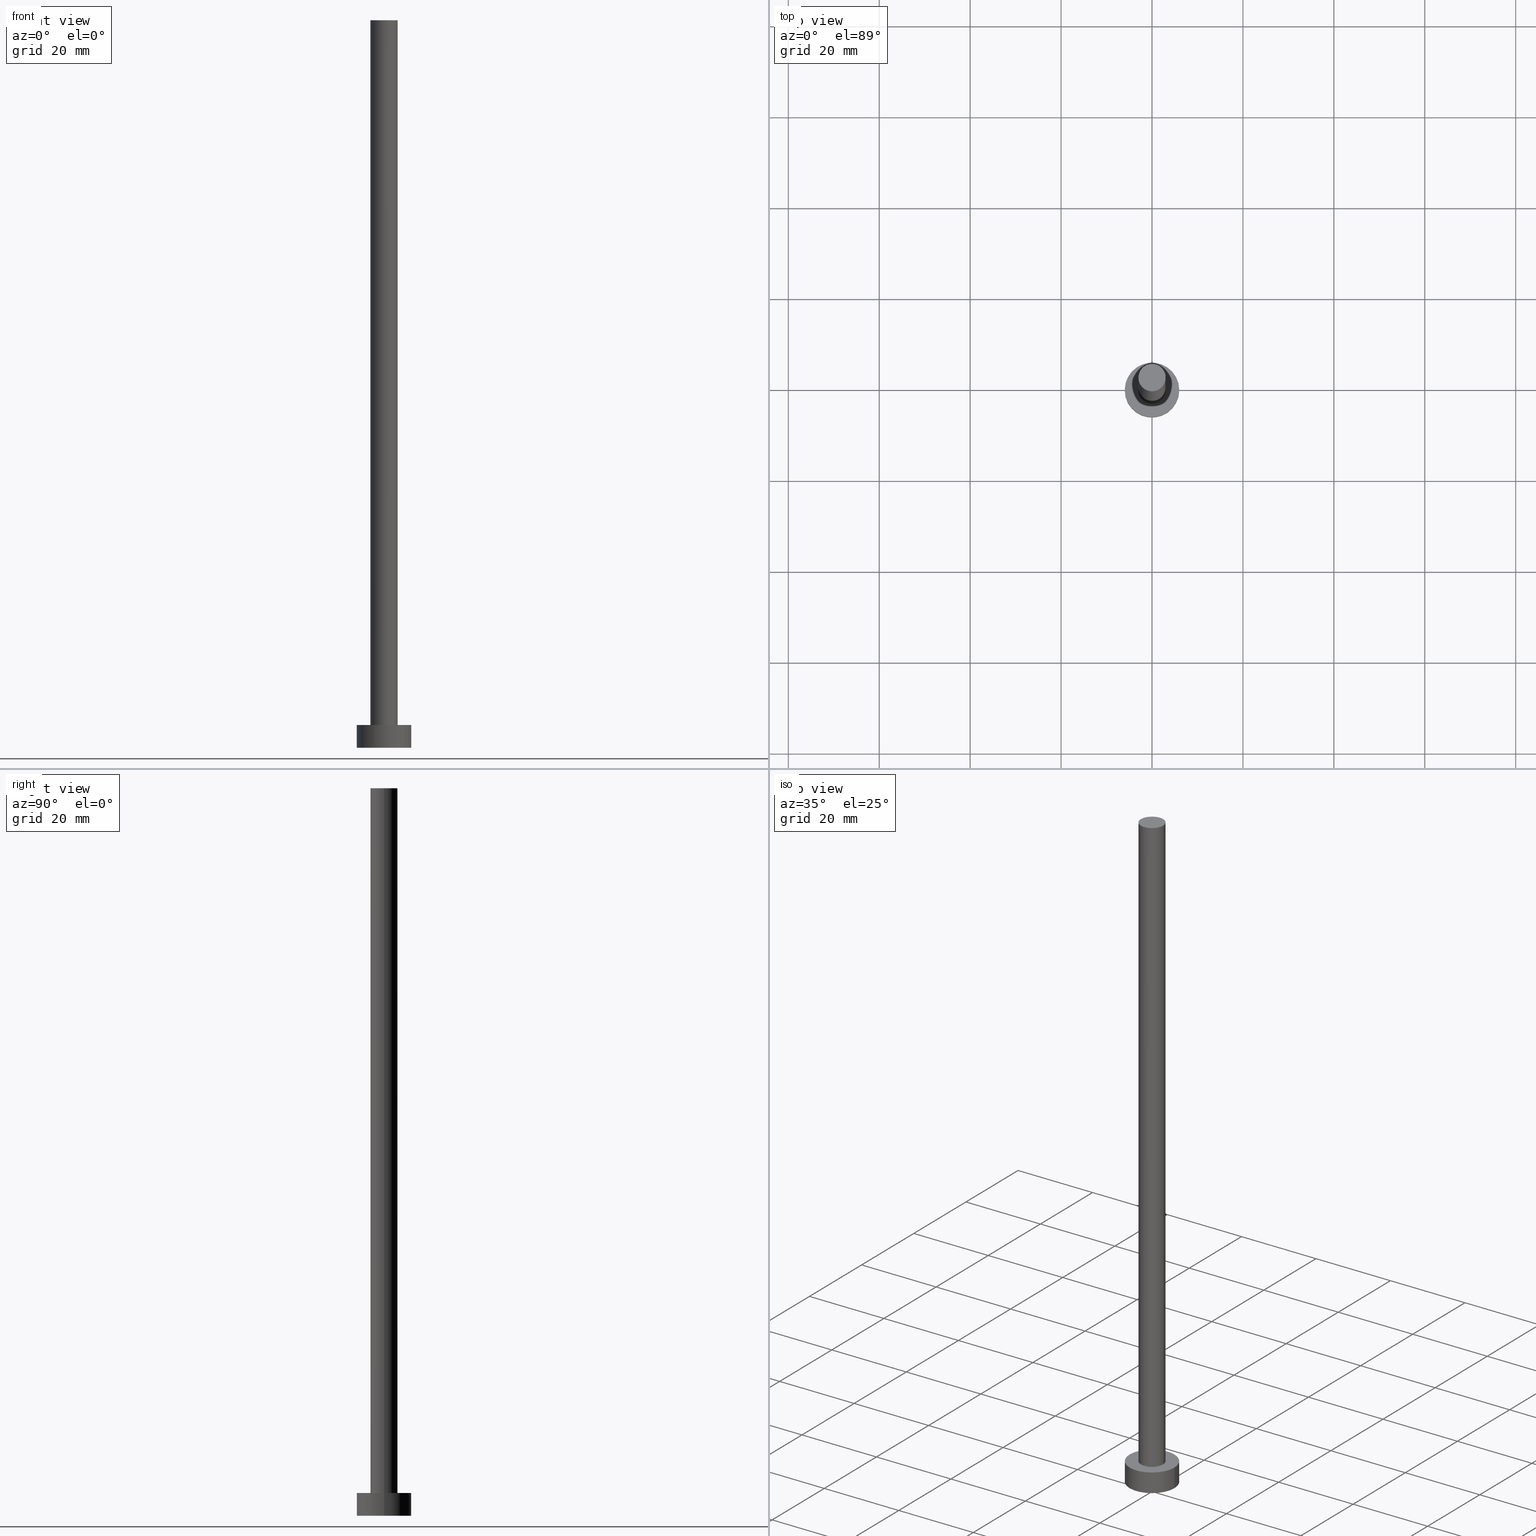
[diagram: canonical four-view strip — front | top / right | iso, engineering-drawing reading convention]
A machine part, canonical four-view strip (front | top / right | iso — engineering-drawing reading convention). The complete STEP part file that produces these views, byte-faithful:
ISO-10303-21;
HEADER;
FILE_DESCRIPTION (( 'STEP AP203' ),
    '1' );
FILE_NAME ('0fea.STEP',
    '2023-02-13T12:38:16',
    ( '' ),
    ( '' ),
    'SwSTEP 2.0',
    'SolidWorks 2019',
    '' );
FILE_SCHEMA (( 'CONFIG_CONTROL_DESIGN' ));
ENDSEC;

DATA;
#1 = PERSON_AND_ORGANIZATION ( #198, #34 ) ;
#2 = COORDINATED_UNIVERSAL_TIME_OFFSET ( 1, 0, .AHEAD. ) ;
#3 = CIRCLE ( 'NONE', #213, 6.000000000000000888 ) ;
#4 = DATE_AND_TIME ( #77, #88 ) ;
#5 = PRODUCT_DEFINITION ( 'NEZN�M�', '', #62, #22 ) ;
#6 = ORIENTED_EDGE ( 'NONE', *, *, #154, .F. ) ;
#7 = PRODUCT ( '0fea', '0fea', '', ( #96 ) ) ;
#8 = ORIENTED_EDGE ( 'NONE', *, *, #80, .F. ) ;
#9 = ORIENTED_EDGE ( 'NONE', *, *, #228, .T. ) ;
#10 = CARTESIAN_POINT ( 'NONE',  ( 0.000000000000000000, 0.000000000000000000, 5.000000000000000000 ) ) ;
#11 = AXIS2_PLACEMENT_3D ( 'NONE', #43, #173, #245 ) ;
#12 = DIRECTION ( 'NONE',  ( 1.000000000000000000, 0.000000000000000000, 0.000000000000000000 ) ) ;
#13 = DIRECTION ( 'NONE',  ( 1.000000000000000000, 0.000000000000000000, 0.000000000000000000 ) ) ;
#14 = LINE ( 'NONE', #30, #142 ) ;
#15 = LINE ( 'NONE', #32, #175 ) ;
#16 = DIRECTION ( 'NONE',  ( 1.000000000000000000, 0.000000000000000000, 0.000000000000000000 ) ) ;
#17 = CARTESIAN_POINT ( 'NONE',  ( 0.000000000000000000, 0.000000000000000000, 0.000000000000000000 ) ) ;
#18 = COORDINATED_UNIVERSAL_TIME_OFFSET ( 1, 0, .AHEAD. ) ;
#19 = SECURITY_CLASSIFICATION_LEVEL ( 'unclassified' ) ;
#20 = CARTESIAN_POINT ( 'NONE',  ( 0.000000000000000000, 0.000000000000000000, 160.0000000000000000 ) ) ;
#21 = VERTEX_POINT ( 'NONE', #127 ) ;
#22 = DESIGN_CONTEXT ( 'detailed design', #250, 'design' ) ;
#23 = VECTOR ( 'NONE', #155, 1000.000000000000000 ) ;
#24 = SECURITY_CLASSIFICATION ( '', '', #19 ) ;
#25 = DIRECTION ( 'NONE',  ( -0.000000000000000000, -0.000000000000000000, -1.000000000000000000 ) ) ;
#26 = CYLINDRICAL_SURFACE ( 'NONE', #151, 3.000000000000000444 ) ;
#27 = DIRECTION ( 'NONE',  ( 0.000000000000000000, 0.000000000000000000, 1.000000000000000000 ) ) ;
#28 = CIRCLE ( 'NONE', #185, 3.000000000000000444 ) ;
#29 = CARTESIAN_POINT ( 'NONE',  ( -6.000000000000000888, 0.000000000000000000, 5.000000000000000000 ) ) ;
#30 = CARTESIAN_POINT ( 'NONE',  ( 6.000000000000000888, 7.347880794884120722E-16, 5.000000000000000000 ) ) ;
#31 = DIRECTION ( 'NONE',  ( -1.000000000000000000, 0.000000000000000000, 0.000000000000000000 ) ) ;
#32 = CARTESIAN_POINT ( 'NONE',  ( 3.000000000000000444, 3.673940397442060361E-16, 160.0000000000000000 ) ) ;
#33 = APPROVAL_STATUS ( 'not_yet_approved' ) ;
#34 = ORGANIZATION ( 'NEUR�EN�', 'NEUR�EN�', '' ) ;
#35 = PERSON_AND_ORGANIZATION_ROLE ( 'design_supplier' ) ;
#36 = PRODUCT_DEFINITION_SHAPE ( 'NONE', 'NONE',  #5 ) ;
#37 = APPROVAL_ROLE ( '' ) ;
#38 = EDGE_LOOP ( 'NONE', ( #6, #40, #240, #124 ) ) ;
#39 = EDGE_LOOP ( 'NONE', ( #184, #126, #86, #152 ) ) ;
#40 = ORIENTED_EDGE ( 'NONE', *, *, #53, .F. ) ;
#41 = CC_DESIGN_APPROVAL ( #71, ( #62 ) ) ;
#42 = FACE_OUTER_BOUND ( 'NONE', #84, .T. ) ;
#43 = CARTESIAN_POINT ( 'NONE',  ( 0.000000000000000000, 0.000000000000000000, 5.000000000000000000 ) ) ;
#44 = ADVANCED_FACE ( 'NONE', ( #42 ), #206, .T. ) ;
#45 = DIRECTION ( 'NONE',  ( 0.000000000000000000, 0.000000000000000000, 1.000000000000000000 ) ) ;
#46 = AXIS2_PLACEMENT_3D ( 'NONE', #108, #48, #190 ) ;
#47 = CARTESIAN_POINT ( 'NONE',  ( 3.000000000000000444, 3.673940397442060361E-16, 160.0000000000000000 ) ) ;
#48 = DIRECTION ( 'NONE',  ( 0.000000000000000000, 0.000000000000000000, 1.000000000000000000 ) ) ;
#49 = ADVANCED_FACE ( 'NONE', ( #207 ), #26, .T. ) ;
#50 = CARTESIAN_POINT ( 'NONE',  ( 0.000000000000000000, 0.000000000000000000, 0.000000000000000000 ) ) ;
#51 = CIRCLE ( 'NONE', #128, 6.000000000000000888 ) ;
#52 = LOCAL_TIME ( 13, 38, 16.00000000000000000, #203 ) ;
#53 = EDGE_CURVE ( 'NONE', #82, #103, #51, .T. ) ;
#54 = PERSON_AND_ORGANIZATION ( #198, #34 ) ;
#55 = CALENDAR_DATE ( 2023, 13, 2 ) ;
#56 = AXIS2_PLACEMENT_3D ( 'NONE', #195, #208, #137 ) ;
#57 = PERSON_AND_ORGANIZATION ( #198, #34 ) ;
#58 = CC_DESIGN_PERSON_AND_ORGANIZATION_ASSIGNMENT ( #54, #217, ( #62 ) ) ;
#59 = CALENDAR_DATE ( 2023, 13, 2 ) ;
#60 = EDGE_LOOP ( 'NONE', ( #169, #171 ) ) ;
#61 = AXIS2_PLACEMENT_3D ( 'NONE', #139, #181, #234 ) ;
#62 = PRODUCT_DEFINITION_FORMATION_WITH_SPECIFIED_SOURCE ( 'LIBOVOLN�', '', #7, .NOT_KNOWN. ) ;
#63 = ORIENTED_EDGE ( 'NONE', *, *, #247, .F. ) ;
#64 = VERTEX_POINT ( 'NONE', #189 ) ;
#65 = DIRECTION ( 'NONE',  ( 0.000000000000000000, 0.000000000000000000, 1.000000000000000000 ) ) ;
#66 = MANIFOLD_SOLID_BREP ( 'P�idat vysunut�m3', #200 ) ;
#67 = PLANE ( 'NONE',  #61 ) ;
#68 = CARTESIAN_POINT ( 'NONE',  ( 6.000000000000000888, 7.347880794884120722E-16, 5.000000000000000000 ) ) ;
#69 = CIRCLE ( 'NONE', #46, 6.000000000000000888 ) ;
#70 = DIRECTION ( 'NONE',  ( -0.000000000000000000, -0.000000000000000000, -1.000000000000000000 ) ) ;
#71 = APPROVAL ( #33, 'NEUR�EN�' ) ;
#72 = DIRECTION ( 'NONE',  ( -0.000000000000000000, -0.000000000000000000, -1.000000000000000000 ) ) ;
#73 = FACE_OUTER_BOUND ( 'NONE', #239, .T. ) ;
#74 = AXIS2_PLACEMENT_3D ( 'NONE', #153, #27, #93 ) ;
#75 = CC_DESIGN_SECURITY_CLASSIFICATION ( #24, ( #62 ) ) ;
#76 = EDGE_CURVE ( 'NONE', #82, #148, #246, .T. ) ;
#77 = CALENDAR_DATE ( 2023, 13, 2 ) ;
#78 = PERSON_AND_ORGANIZATION ( #198, #34 ) ;
#79 = CIRCLE ( 'NONE', #74, 3.000000000000000444 ) ;
#80 = EDGE_CURVE ( 'NONE', #187, #21, #15, .T. ) ;
#81 = PERSON_AND_ORGANIZATION ( #198, #34 ) ;
#82 = VERTEX_POINT ( 'NONE', #251 ) ;
#83 = ORIENTED_EDGE ( 'NONE', *, *, #120, .F. ) ;
#84 = EDGE_LOOP ( 'NONE', ( #8, #83, #147, #167 ) ) ;
#85 = VERTEX_POINT ( 'NONE', #209 ) ;
#86 = ORIENTED_EDGE ( 'NONE', *, *, #247, .T. ) ;
#87 = CIRCLE ( 'NONE', #109, 6.000000000000000888 ) ;
#88 = LOCAL_TIME ( 13, 38, 16.00000000000000000, #18 ) ;
#89 = PLANE ( 'NONE',  #223 ) ;
#90 = PLANE ( 'NONE',  #222 ) ;
#91 = CARTESIAN_POINT ( 'NONE',  ( 0.000000000000000000, 0.000000000000000000, 5.000000000000000000 ) ) ;
#92 = APPROVAL_PERSON_ORGANIZATION ( #57, #125, #37 ) ;
#93 = DIRECTION ( 'NONE',  ( 1.000000000000000000, 0.000000000000000000, 0.000000000000000000 ) ) ;
#94 = CARTESIAN_POINT ( 'NONE',  ( 0.000000000000000000, 0.000000000000000000, 160.0000000000000000 ) ) ;
#95 = CC_DESIGN_PERSON_AND_ORGANIZATION_ASSIGNMENT ( #99, #182, ( #24 ) ) ;
#96 = MECHANICAL_CONTEXT ( 'NONE', #136, 'mechanical' ) ;
#97 =( NAMED_UNIT ( * ) PLANE_ANGLE_UNIT ( ) SI_UNIT ( $, .RADIAN. ) );
#98 = APPLICATION_PROTOCOL_DEFINITION ( 'international standard', 'config_control_design', 1994, #136 ) ;
#99 = PERSON_AND_ORGANIZATION ( #198, #34 ) ;
#100 = EDGE_CURVE ( 'NONE', #148, #64, #3, .T. ) ;
#101 = APPROVAL_DATE_TIME ( #160, #238 ) ;
#102 = APPROVAL_DATE_TIME ( #220, #125 ) ;
#103 = VERTEX_POINT ( 'NONE', #68 ) ;
#104 = ORIENTED_EDGE ( 'NONE', *, *, #193, .F. ) ;
#105 = ORIENTED_EDGE ( 'NONE', *, *, #193, .T. ) ;
#106 = DIRECTION ( 'NONE',  ( -0.000000000000000000, -0.000000000000000000, -1.000000000000000000 ) ) ;
#107 = EDGE_CURVE ( 'NONE', #103, #82, #69, .T. ) ;
#108 = CARTESIAN_POINT ( 'NONE',  ( 0.000000000000000000, 0.000000000000000000, 5.000000000000000000 ) ) ;
#109 = AXIS2_PLACEMENT_3D ( 'NONE', #50, #135, #156 ) ;
#110 = CARTESIAN_POINT ( 'NONE',  ( -3.000000000000000444, 0.000000000000000000, 5.000000000000000000 ) ) ;
#111 = ADVANCED_FACE ( 'NONE', ( #227 ), #210, .T. ) ;
#112 = FACE_BOUND ( 'NONE', #241, .T. ) ;
#113 = CARTESIAN_POINT ( 'NONE',  ( 0.000000000000000000, 0.000000000000000000, 5.000000000000000000 ) ) ;
#114 = APPROVAL_PERSON_ORGANIZATION ( #78, #238, #121 ) ;
#115 = CYLINDRICAL_SURFACE ( 'NONE', #56, 6.000000000000000888 ) ;
#116 = COORDINATED_UNIVERSAL_TIME_OFFSET ( 1, 0, .AHEAD. ) ;
#117 = APPROVAL_PERSON_ORGANIZATION ( #81, #71, #231 ) ;
#118 = DATE_AND_TIME ( #55, #143 ) ;
#119 = APPROVAL_STATUS ( 'not_yet_approved' ) ;
#120 = EDGE_CURVE ( 'NONE', #85, #187, #28, .T. ) ;
#121 = APPROVAL_ROLE ( '' ) ;
#122 = CIRCLE ( 'NONE', #11, 3.000000000000000444 ) ;
#123 = CC_DESIGN_APPROVAL ( #125, ( #24 ) ) ;
#124 = ORIENTED_EDGE ( 'NONE', *, *, #100, .T. ) ;
#125 = APPROVAL ( #145, 'NEUR�EN�' ) ;
#126 = ORIENTED_EDGE ( 'NONE', *, *, #80, .T. ) ;
#127 = CARTESIAN_POINT ( 'NONE',  ( 3.000000000000000444, 3.673940397442060361E-16, 5.000000000000000000 ) ) ;
#128 = AXIS2_PLACEMENT_3D ( 'NONE', #10, #65, #12 ) ;
#129 = SHAPE_DEFINITION_REPRESENTATION ( #36, #216 ) ;
#130 = CC_DESIGN_PERSON_AND_ORGANIZATION_ASSIGNMENT ( #1, #144, ( #7 ) ) ;
#131 = DIRECTION ( 'NONE',  ( -1.000000000000000000, 0.000000000000000000, 0.000000000000000000 ) ) ;
#132 = FACE_OUTER_BOUND ( 'NONE', #165, .T. ) ;
#133 = DIRECTION ( 'NONE',  ( 0.000000000000000000, 0.000000000000000000, 1.000000000000000000 ) ) ;
#134 = PRODUCT_RELATED_PRODUCT_CATEGORY ( 'detail', '', ( #7 ) ) ;
#135 = DIRECTION ( 'NONE',  ( 0.000000000000000000, 0.000000000000000000, 1.000000000000000000 ) ) ;
#136 = APPLICATION_CONTEXT ( 'configuration controlled 3d designs of mechanical parts and assemblies' ) ;
#137 = DIRECTION ( 'NONE',  ( -1.000000000000000000, 0.000000000000000000, 0.000000000000000000 ) ) ;
#138 = DIRECTION ( 'NONE',  ( 0.000000000000000000, 0.000000000000000000, 1.000000000000000000 ) ) ;
#139 = CARTESIAN_POINT ( 'NONE',  ( 0.000000000000000000, 0.000000000000000000, 160.0000000000000000 ) ) ;
#140 = PERSON_AND_ORGANIZATION_ROLE ( 'creator' ) ;
#141 = ADVANCED_FACE ( 'NONE', ( #229 ), #115, .T. ) ;
#142 = VECTOR ( 'NONE', #70, 1000.000000000000000 ) ;
#143 = LOCAL_TIME ( 13, 38, 16.00000000000000000, #116 ) ;
#144 = PERSON_AND_ORGANIZATION_ROLE ( 'design_owner' ) ;
#145 = APPROVAL_STATUS ( 'not_yet_approved' ) ;
#146 = VECTOR ( 'NONE', #191, 1000.000000000000000 ) ;
#147 = ORIENTED_EDGE ( 'NONE', *, *, #162, .T. ) ;
#148 = VERTEX_POINT ( 'NONE', #174 ) ;
#149 = UNCERTAINTY_MEASURE_WITH_UNIT (LENGTH_MEASURE( 1.000000000000000082E-05 ), #214, 'distance_accuracy_value', 'NONE');
#150 = ORIENTED_EDGE ( 'NONE', *, *, #107, .F. ) ;
#151 = AXIS2_PLACEMENT_3D ( 'NONE', #244, #106, #188 ) ;
#152 = ORIENTED_EDGE ( 'NONE', *, *, #162, .F. ) ;
#153 = CARTESIAN_POINT ( 'NONE',  ( 0.000000000000000000, 0.000000000000000000, 160.0000000000000000 ) ) ;
#154 = EDGE_CURVE ( 'NONE', #103, #64, #14, .T. ) ;
#155 = DIRECTION ( 'NONE',  ( -0.000000000000000000, -0.000000000000000000, -1.000000000000000000 ) ) ;
#156 = DIRECTION ( 'NONE',  ( 1.000000000000000000, 0.000000000000000000, 0.000000000000000000 ) ) ;
#157 = CARTESIAN_POINT ( 'NONE',  ( -3.000000000000000444, 0.000000000000000000, 160.0000000000000000 ) ) ;
#158 = CC_DESIGN_DATE_AND_TIME_ASSIGNMENT ( #4, #161, ( #5 ) ) ;
#159 = DIRECTION ( 'NONE',  ( 0.000000000000000000, 0.000000000000000000, 1.000000000000000000 ) ) ;
#160 = DATE_AND_TIME ( #163, #180 ) ;
#161 = DATE_TIME_ROLE ( 'creation_date' ) ;
#162 = EDGE_CURVE ( 'NONE', #85, #168, #211, .T. ) ;
#163 = CALENDAR_DATE ( 2023, 13, 2 ) ;
#164 = CALENDAR_DATE ( 2023, 13, 2 ) ;
#165 = EDGE_LOOP ( 'NONE', ( #201, #9 ) ) ;
#166 = AXIS2_PLACEMENT_3D ( 'NONE', #17, #179, #254 ) ;
#167 = ORIENTED_EDGE ( 'NONE', *, *, #199, .T. ) ;
#168 = VERTEX_POINT ( 'NONE', #110 ) ;
#169 = ORIENTED_EDGE ( 'NONE', *, *, #53, .T. ) ;
#170 = AXIS2_PLACEMENT_3D ( 'NONE', #20, #25, #131 ) ;
#171 = ORIENTED_EDGE ( 'NONE', *, *, #107, .T. ) ;
#172 = CARTESIAN_POINT ( 'NONE',  ( 0.000000000000000000, 0.000000000000000000, 0.000000000000000000 ) ) ;
#173 = DIRECTION ( 'NONE',  ( 0.000000000000000000, 0.000000000000000000, 1.000000000000000000 ) ) ;
#174 = CARTESIAN_POINT ( 'NONE',  ( -6.000000000000000888, 0.000000000000000000, 0.000000000000000000 ) ) ;
#175 = VECTOR ( 'NONE', #230, 1000.000000000000000 ) ;
#176 = LOCAL_TIME ( 13, 38, 16.00000000000000000, #2 ) ;
#177 = DIRECTION ( 'NONE',  ( 1.000000000000000000, 0.000000000000000000, 0.000000000000000000 ) ) ;
#178 = CARTESIAN_POINT ( 'NONE',  ( 0.000000000000000000, 0.000000000000000000, 5.000000000000000000 ) ) ;
#179 = DIRECTION ( 'NONE',  ( 0.000000000000000000, 0.000000000000000000, 1.000000000000000000 ) ) ;
#180 = LOCAL_TIME ( 13, 38, 16.00000000000000000, #197 ) ;
#181 = DIRECTION ( 'NONE',  ( 0.000000000000000000, 0.000000000000000000, 1.000000000000000000 ) ) ;
#182 = PERSON_AND_ORGANIZATION_ROLE ( 'classification_officer' ) ;
#183 = APPLICATION_PROTOCOL_DEFINITION ( 'international standard', 'config_control_design', 1994, #250 ) ;
#184 = ORIENTED_EDGE ( 'NONE', *, *, #228, .F. ) ;
#185 = AXIS2_PLACEMENT_3D ( 'NONE', #94, #133, #16 ) ;
#186 = CC_DESIGN_PERSON_AND_ORGANIZATION_ASSIGNMENT ( #218, #35, ( #62 ) ) ;
#187 = VERTEX_POINT ( 'NONE', #47 ) ;
#188 = DIRECTION ( 'NONE',  ( -1.000000000000000000, 0.000000000000000000, 0.000000000000000000 ) ) ;
#189 = CARTESIAN_POINT ( 'NONE',  ( 6.000000000000000888, 7.347880794884120722E-16, 0.000000000000000000 ) ) ;
#190 = DIRECTION ( 'NONE',  ( 1.000000000000000000, 0.000000000000000000, 0.000000000000000000 ) ) ;
#191 = DIRECTION ( 'NONE',  ( -0.000000000000000000, -0.000000000000000000, -1.000000000000000000 ) ) ;
#192 = DIRECTION ( 'NONE',  ( 1.000000000000000000, 0.000000000000000000, -0.000000000000000000 ) ) ;
#193 = EDGE_CURVE ( 'NONE', #64, #148, #87, .T. ) ;
#194 =( GEOMETRIC_REPRESENTATION_CONTEXT ( 3 ) GLOBAL_UNCERTAINTY_ASSIGNED_CONTEXT ( ( #149 ) ) GLOBAL_UNIT_ASSIGNED_CONTEXT ( ( #214, #97, #236 ) ) REPRESENTATION_CONTEXT ( 'NONE', 'WORKASPACE' ) );
#195 = CARTESIAN_POINT ( 'NONE',  ( 0.000000000000000000, 0.000000000000000000, 5.000000000000000000 ) ) ;
#196 = CC_DESIGN_PERSON_AND_ORGANIZATION_ASSIGNMENT ( #255, #140, ( #5 ) ) ;
#197 = COORDINATED_UNIVERSAL_TIME_OFFSET ( 1, 0, .AHEAD. ) ;
#198 = PERSON ( 'NEUR�EN�', 'NEUR�EN�', 'NEUR�EN�', ('NEUR�EN�'), ('NEUR�EN�'), ('NEUR�EN�') ) ;
#199 = EDGE_CURVE ( 'NONE', #168, #21, #232, .T. ) ;
#200 = CLOSED_SHELL ( 'NONE', ( #49, #111, #141, #202, #243, #44, #253 ) ) ;
#201 = ORIENTED_EDGE ( 'NONE', *, *, #120, .T. ) ;
#202 = ADVANCED_FACE ( 'NONE', ( #112, #212 ), #89, .T. ) ;
#203 = COORDINATED_UNIVERSAL_TIME_OFFSET ( 1, 0, .AHEAD. ) ;
#204 = ORIENTED_EDGE ( 'NONE', *, *, #100, .F. ) ;
#205 = AXIS2_PLACEMENT_3D ( 'NONE', #178, #138, #177 ) ;
#206 = CYLINDRICAL_SURFACE ( 'NONE', #170, 3.000000000000000444 ) ;
#207 = FACE_OUTER_BOUND ( 'NONE', #39, .T. ) ;
#208 = DIRECTION ( 'NONE',  ( -0.000000000000000000, -0.000000000000000000, -1.000000000000000000 ) ) ;
#209 = CARTESIAN_POINT ( 'NONE',  ( -3.000000000000000444, 0.000000000000000000, 160.0000000000000000 ) ) ;
#210 = CYLINDRICAL_SURFACE ( 'NONE', #248, 6.000000000000000888 ) ;
#211 = LINE ( 'NONE', #157, #23 ) ;
#212 = FACE_OUTER_BOUND ( 'NONE', #60, .T. ) ;
#213 = AXIS2_PLACEMENT_3D ( 'NONE', #249, #45, #13 ) ;
#214 =( LENGTH_UNIT ( ) NAMED_UNIT ( * ) SI_UNIT ( .MILLI., .METRE. ) );
#215 = CC_DESIGN_DATE_AND_TIME_ASSIGNMENT ( #219, #237, ( #24 ) ) ;
#216 = ADVANCED_BREP_SHAPE_REPRESENTATION ( '0fea', ( #66, #166 ), #194 ) ;
#217 = PERSON_AND_ORGANIZATION_ROLE ( 'creator' ) ;
#218 = PERSON_AND_ORGANIZATION ( #198, #34 ) ;
#219 = DATE_AND_TIME ( #164, #176 ) ;
#220 = DATE_AND_TIME ( #59, #52 ) ;
#221 = ORIENTED_EDGE ( 'NONE', *, *, #199, .F. ) ;
#222 = AXIS2_PLACEMENT_3D ( 'NONE', #172, #159, #226 ) ;
#223 = AXIS2_PLACEMENT_3D ( 'NONE', #113, #252, #192 ) ;
#224 = ORIENTED_EDGE ( 'NONE', *, *, #76, .F. ) ;
#225 = ORIENTED_EDGE ( 'NONE', *, *, #154, .T. ) ;
#226 = DIRECTION ( 'NONE',  ( 1.000000000000000000, 0.000000000000000000, -0.000000000000000000 ) ) ;
#227 = FACE_OUTER_BOUND ( 'NONE', #242, .T. ) ;
#228 = EDGE_CURVE ( 'NONE', #187, #85, #79, .T. ) ;
#229 = FACE_OUTER_BOUND ( 'NONE', #38, .T. ) ;
#230 = DIRECTION ( 'NONE',  ( -0.000000000000000000, -0.000000000000000000, -1.000000000000000000 ) ) ;
#231 = APPROVAL_ROLE ( '' ) ;
#232 = CIRCLE ( 'NONE', #205, 3.000000000000000444 ) ;
#233 = CC_DESIGN_APPROVAL ( #238, ( #5 ) ) ;
#234 = DIRECTION ( 'NONE',  ( 1.000000000000000000, 0.000000000000000000, -0.000000000000000000 ) ) ;
#235 = APPROVAL_DATE_TIME ( #118, #71 ) ;
#236 =( NAMED_UNIT ( * ) SI_UNIT ( $, .STERADIAN. ) SOLID_ANGLE_UNIT ( ) );
#237 = DATE_TIME_ROLE ( 'classification_date' ) ;
#238 = APPROVAL ( #119, 'NEUR�EN�' ) ;
#239 = EDGE_LOOP ( 'NONE', ( #204, #104 ) ) ;
#240 = ORIENTED_EDGE ( 'NONE', *, *, #76, .T. ) ;
#241 = EDGE_LOOP ( 'NONE', ( #221, #63 ) ) ;
#242 = EDGE_LOOP ( 'NONE', ( #150, #225, #105, #224 ) ) ;
#243 = ADVANCED_FACE ( 'NONE', ( #73 ), #90, .F. ) ;
#244 = CARTESIAN_POINT ( 'NONE',  ( 0.000000000000000000, 0.000000000000000000, 160.0000000000000000 ) ) ;
#245 = DIRECTION ( 'NONE',  ( 1.000000000000000000, 0.000000000000000000, 0.000000000000000000 ) ) ;
#246 = LINE ( 'NONE', #29, #146 ) ;
#247 = EDGE_CURVE ( 'NONE', #21, #168, #122, .T. ) ;
#248 = AXIS2_PLACEMENT_3D ( 'NONE', #91, #72, #31 ) ;
#249 = CARTESIAN_POINT ( 'NONE',  ( 0.000000000000000000, 0.000000000000000000, 0.000000000000000000 ) ) ;
#250 = APPLICATION_CONTEXT ( 'configuration controlled 3d designs of mechanical parts and assemblies' ) ;
#251 = CARTESIAN_POINT ( 'NONE',  ( -6.000000000000000888, 0.000000000000000000, 5.000000000000000000 ) ) ;
#252 = DIRECTION ( 'NONE',  ( 0.000000000000000000, 0.000000000000000000, 1.000000000000000000 ) ) ;
#253 = ADVANCED_FACE ( 'NONE', ( #132 ), #67, .T. ) ;
#254 = DIRECTION ( 'NONE',  ( 1.000000000000000000, 0.000000000000000000, 0.000000000000000000 ) ) ;
#255 = PERSON_AND_ORGANIZATION ( #198, #34 ) ;
ENDSEC;
END-ISO-10303-21;
